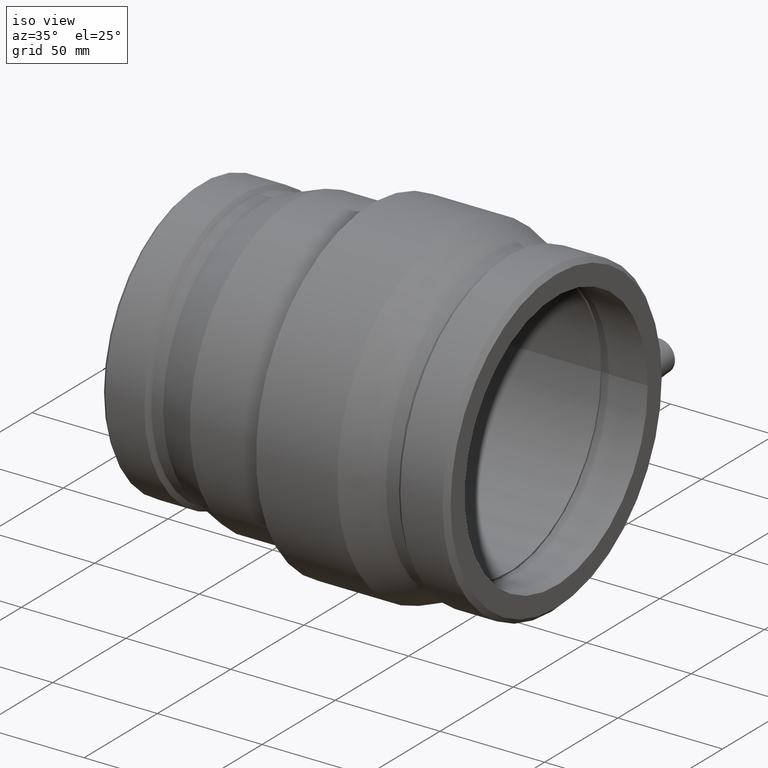
[diagram: clean part render]
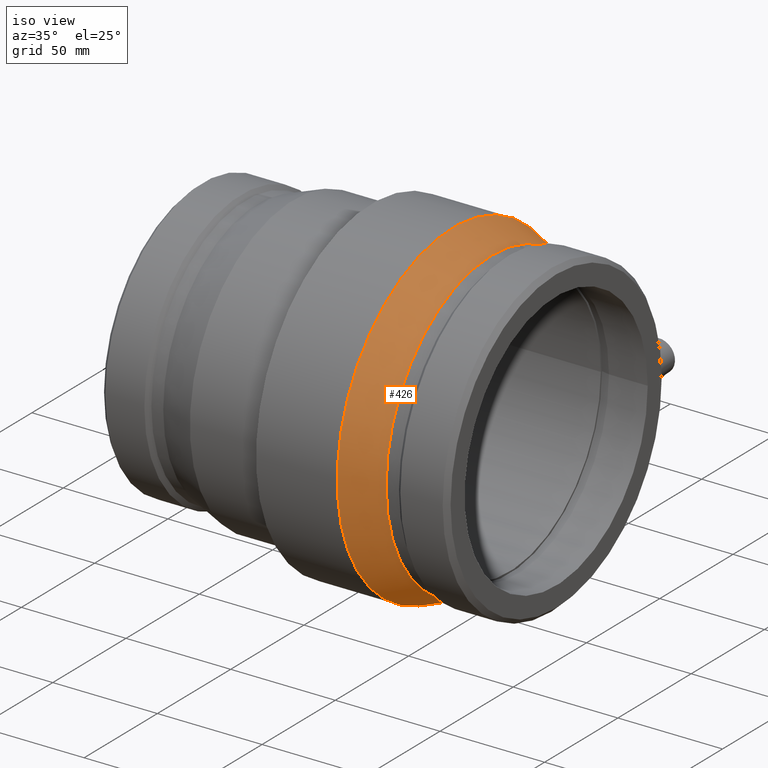
[diagram: same view with one face highlighted and labeled with its STEP entity id]
A machine part, iso view. The second image highlights one B-rep face of the part: STEP entity #426.
In plain terms, the highlighted conical surface has half-angle 20.667 deg.
Its self-contained STEP definition (entity closure, byte-faithful):
#23=CONICAL_SURFACE('',#487,75.5161,20.6668482190193);
#49=FACE_BOUND('',#164,.T.);
#104=FACE_OUTER_BOUND('',#163,.T.);
#163=EDGE_LOOP('',(#356));
#164=EDGE_LOOP('',(#357));
#219=CIRCLE('',#486,79.);
#220=CIRCLE('',#488,72.0322);
#258=VERTEX_POINT('',#806);
#259=VERTEX_POINT('',#809);
#297=EDGE_CURVE('',#258,#258,#219,.T.);
#298=EDGE_CURVE('',#259,#259,#220,.T.);
#356=ORIENTED_EDGE('',*,*,#297,.T.);
#357=ORIENTED_EDGE('',*,*,#298,.F.);
#426=ADVANCED_FACE('',(#104,#49),#23,.T.);
#486=AXIS2_PLACEMENT_3D('',#807,#604,#605);
#487=AXIS2_PLACEMENT_3D('',#808,#606,#607);
#488=AXIS2_PLACEMENT_3D('',#810,#608,#609);
#604=DIRECTION('center_axis',(1.,0.,0.));
#605=DIRECTION('ref_axis',(0.,0.,-1.));
#606=DIRECTION('center_axis',(-1.,0.,0.));
#607=DIRECTION('ref_axis',(0.,1.,0.));
#608=DIRECTION('center_axis',(1.,0.,0.));
#609=DIRECTION('ref_axis',(0.,0.,-1.));
#806=CARTESIAN_POINT('',(36.2154355476776,79.,0.));
#807=CARTESIAN_POINT('Origin',(36.2154355476776,0.,0.));
#808=CARTESIAN_POINT('Origin',(45.4514677738388,0.,0.));
#809=CARTESIAN_POINT('',(54.6875,72.0322,0.));
#810=CARTESIAN_POINT('Origin',(54.6875,0.,0.));